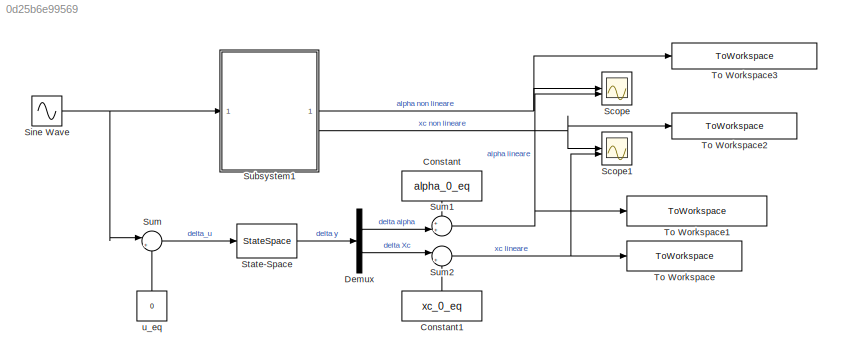
MODEL slx_0d25b6e99569
KIND model
CONFIG AbsTol = auto
CONFIG EnableMultiTasking = off
CONFIG FixedStep = auto
CONFIG MaxStep = auto
CONFIG MinStep = auto
CONFIG RelTol = 1e-3
CONFIG SampleTimeConstraint = Unconstrained
CONFIG SolverName = VariableStepAuto
CONFIG StartTime = 0.0
CONFIG StopTime = 15
BLOCK [Constant] Constant
  NameLocation = left
  Value = alpha_0_eq
BLOCK [Constant] Constant1
  NameLocation = right
  Value = xc_0_eq
BLOCK [Demux] Demux
  Outputs = 2
BLOCK [Scope] Scope
  Floating = off
  NumInputPorts = 2
  ScopeSpecificationString = Simulink.scopes.TimeScopeBlockCfg('CurrentConfiguration', extmgr.ConfigurationSet(extmgr.Configuration('Core','General UI',true),extmgr.Configuration('Core','Source UI',true),extmgr.Configuration('Sources','WiredSimulink',true),extmgr.Configuration('Visuals','Time Domain',true,'SerializedDisplays',{struct('MinYLimReal','-0.69945','MaxYLimReal','3.8349','YLabelReal','','MinYLimMag','0.00000','MaxYL...<+1639ch>
BLOCK [Scope] Scope1
  Floating = off
  NumInputPorts = 2
  ScopeSpecificationString = Simulink.scopes.TimeScopeBlockCfg('CurrentConfiguration', extmgr.ConfigurationSet(extmgr.Configuration('Core','General UI',true),extmgr.Configuration('Core','Source UI',true),extmgr.Configuration('Sources','WiredSimulink',true,'DataLoggingVariableName','ScopeData1'),extmgr.Configuration('Visuals','Time Domain',true,'SerializedDisplays',{struct('MinYLimReal','-0.45747','MaxYLimReal','4.11724','YLab...<+1659ch>
BLOCK [Sin] Sine Wave
  Amplitude = 1e4
  Frequency = 2
  SampleTime = 0
BLOCK [StateSpace] State-Space
  A = A
  B = B
  C = C
  D = D
  InitialCondition = 0
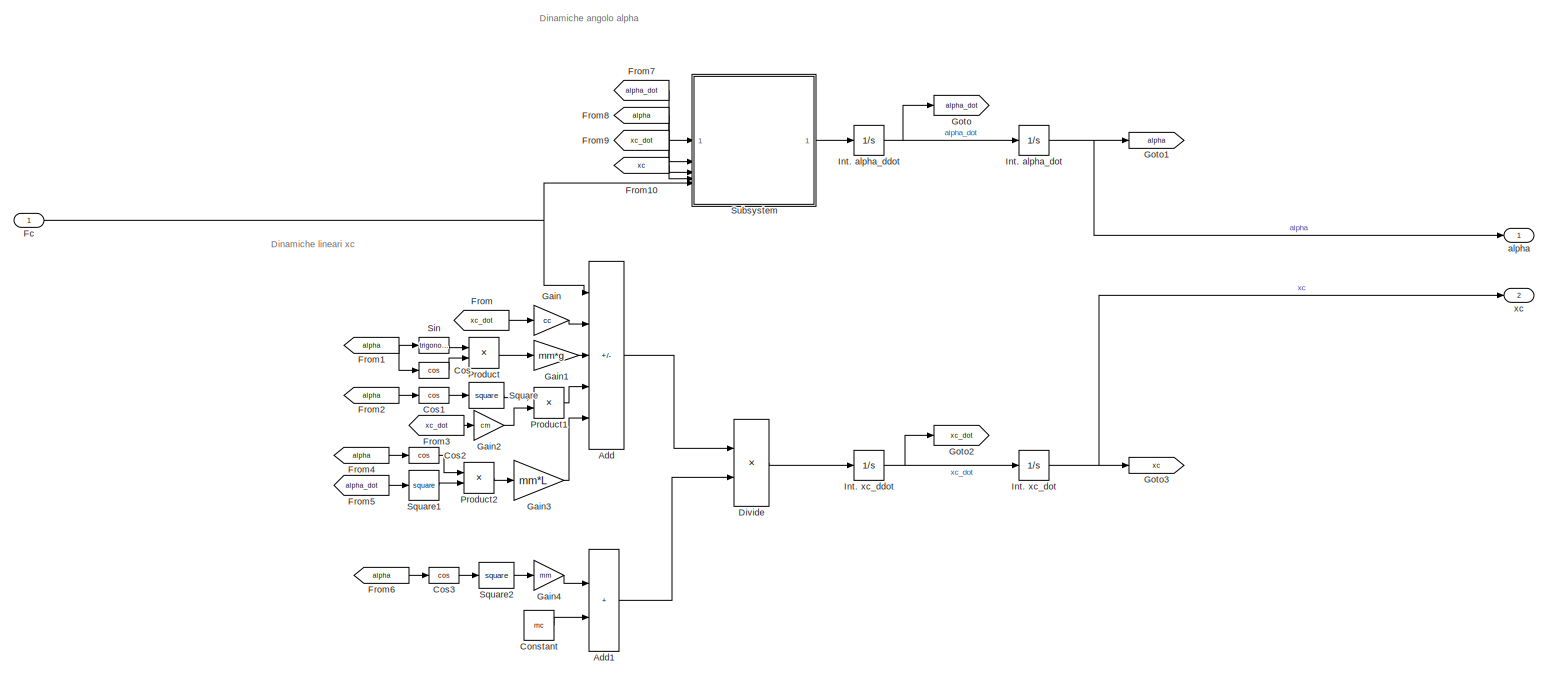
[diagram: Subsystem1 - part 1/1, most of the canvas]
BLOCK [SubSystem] Subsystem1
BLOCK [Sum] Subsystem1/Add
  IconShape = rectangular
  Inputs = +-+-+
BLOCK [Sum] Subsystem1/Add1
  IconShape = rectangular
BLOCK [Constant] Subsystem1/Constant
  Value = mc
BLOCK [Trigonometry] Subsystem1/Cos
  Operator = cos
BLOCK [Trigonometry] Subsystem1/Cos1
  Operator = cos
BLOCK [Trigonometry] Subsystem1/Cos2
  Operator = cos
BLOCK [Trigonometry] Subsystem1/Cos3
  Operator = cos
BLOCK [Product] Subsystem1/Divide
  Inputs = */
BLOCK [Inport] Subsystem1/Fc
BLOCK [From] Subsystem1/From
  GotoTag = xc_dot
BLOCK [From] Subsystem1/From1
  GotoTag = alpha
BLOCK [From] Subsystem1/From10
  GotoTag = xc
BLOCK [From] Subsystem1/From2
  GotoTag = alpha
BLOCK [From] Subsystem1/From3
  GotoTag = xc_dot
BLOCK [From] Subsystem1/From4
  GotoTag = alpha
BLOCK [From] Subsystem1/From5
  GotoTag = alpha_dot
BLOCK [From] Subsystem1/From6
  GotoTag = alpha
BLOCK [From] Subsystem1/From7
  GotoTag = alpha_dot
BLOCK [From] Subsystem1/From8
  GotoTag = alpha
BLOCK [From] Subsystem1/From9
  GotoTag = xc_dot
BLOCK [Gain] Subsystem1/Gain
  Gain = cc
BLOCK [Gain] Subsystem1/Gain1
  Gain = mm*g
BLOCK [Gain] Subsystem1/Gain2
  Gain = cm
BLOCK [Gain] Subsystem1/Gain3
  Gain = mm*L
BLOCK [Gain] Subsystem1/Gain4
  Gain = mm
BLOCK [Goto] Subsystem1/Goto
  GotoTag = alpha_dot
BLOCK [Goto] Subsystem1/Goto1
  GotoTag = alpha
BLOCK [Goto] Subsystem1/Goto2
  GotoTag = xc_dot
BLOCK [Goto] Subsystem1/Goto3
  GotoTag = xc
BLOCK [Integrator] Subsystem1/Int. alpha_ddot
  InitialCondition = alpha_dot_0_eq
BLOCK [Integrator] Subsystem1/Int. alpha_dot
  InitialCondition = alpha_0_eq
BLOCK [Integrator] Subsystem1/Int. xc_ddot
  InitialCondition = xc_dot_0_eq
BLOCK [Integrator] Subsystem1/Int. xc_dot
  InitialCondition = xc_0_eq
BLOCK [Product] Subsystem1/Product
BLOCK [Product] Subsystem1/Product1
BLOCK [Product] Subsystem1/Product2
BLOCK [Trigonometry] Subsystem1/Sin
BLOCK [Math] Subsystem1/Square
  Operator = square
BLOCK [Math] Subsystem1/Square1
  Operator = square
BLOCK [Math] Subsystem1/Square2
  Operator = square
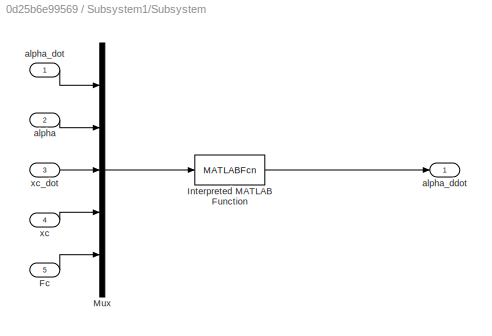
BLOCK [SubSystem] Subsystem1/Subsystem
BLOCK [Inport] Subsystem1/Subsystem/Fc
  Port = 5
BLOCK [MATLABFcn] Subsystem1/Subsystem/Interpreted MATLAB Function
  MATLABFcn = dinamica_alpha(u, mm, mc, cm, cc, L, g)
BLOCK [Mux] Subsystem1/Subsystem/Mux
  DisplayOption = bar
  Inputs = 5
BLOCK [Inport] Subsystem1/Subsystem/alpha
  Port = 2
BLOCK [Outport] Subsystem1/Subsystem/alpha_ddot
BLOCK [Inport] Subsystem1/Subsystem/alpha_dot
BLOCK [Inport] Subsystem1/Subsystem/xc
  Port = 4
BLOCK [Inport] Subsystem1/Subsystem/xc_dot
  Port = 3
BLOCK [Outport] Subsystem1/alpha
BLOCK [Outport] Subsystem1/xc
  Port = 2
BLOCK [Sum] Sum
  Inputs = |+-
BLOCK [Sum] Sum1
  Inputs = ++|
BLOCK [Sum] Sum2
  Inputs = |++
BLOCK [ToWorkspace] To Workspace
  FixptAsFi = on
  MaxDataPoints = inf
  SampleTime = -1
  VariableName = xc_lineare_simulink
BLOCK [ToWorkspace] To Workspace1
  FixptAsFi = on
  MaxDataPoints = inf
  SampleTime = -1
  VariableName = alpha_lineare_simulink
BLOCK [ToWorkspace] To Workspace2
  FixptAsFi = on
  MaxDataPoints = inf
  SampleTime = -1
  VariableName = xc_non_lineare_simulink
BLOCK [ToWorkspace] To Workspace3
  FixptAsFi = on
  MaxDataPoints = inf
  SampleTime = -1
  VariableName = alpha_non_lineare_simulink
BLOCK [Constant] u_eq
  NameLocation = left
  Value = 0
ANNOTATION Subsystem1: Dinamiche angolo alpha
ANNOTATION Subsystem1: Dinamiche lineari xc
LINE Constant1:1 -> Sum2:2
LINE Constant:1 -> Sum1:1
LINE Demux:1 -> Sum1:2
LINE Demux:2 -> Sum2:1
NET Sine Wave:1 -> Subsystem1:1, Sum:1
LINE State-Space:1 -> Demux:1
LINE Subsystem1/Add1:1 -> Subsystem1/Divide:2
LINE Subsystem1/Add:1 -> Subsystem1/Divide:1
LINE Subsystem1/Constant:1 -> Subsystem1/Add1:2
LINE Subsystem1/Cos1:1 -> Subsystem1/Square:1
LINE Subsystem1/Cos2:1 -> Subsystem1/Product2:1
LINE Subsystem1/Cos3:1 -> Subsystem1/Square2:1
LINE Subsystem1/Cos:1 -> Subsystem1/Product:2
LINE Subsystem1/Divide:1 -> Subsystem1/Int. xc_ddot:1
NET Subsystem1/Fc:1 -> Subsystem1/Add:1, Subsystem1/Subsystem:5
LINE Subsystem1/From10:1 -> Subsystem1/Subsystem:4
NET Subsystem1/From1:1 -> Subsystem1/Cos:1, Subsystem1/Sin:1
LINE Subsystem1/From2:1 -> Subsystem1/Cos1:1
LINE Subsystem1/From3:1 -> Subsystem1/Gain2:1
LINE Subsystem1/From4:1 -> Subsystem1/Cos2:1
LINE Subsystem1/From5:1 -> Subsystem1/Square1:1
LINE Subsystem1/From6:1 -> Subsystem1/Cos3:1
LINE Subsystem1/From7:1 -> Subsystem1/Subsystem:1
LINE Subsystem1/From8:1 -> Subsystem1/Subsystem:2
LINE Subsystem1/From9:1 -> Subsystem1/Subsystem:3
LINE Subsystem1/From:1 -> Subsystem1/Gain:1
LINE Subsystem1/Gain1:1 -> Subsystem1/Add:3
LINE Subsystem1/Gain2:1 -> Subsystem1/Product1:2
LINE Subsystem1/Gain3:1 -> Subsystem1/Add:5
LINE Subsystem1/Gain4:1 -> Subsystem1/Add1:1
LINE Subsystem1/Gain:1 -> Subsystem1/Add:2
NET Subsystem1/Int. alpha_ddot:1 -> Subsystem1/Goto:1, Subsystem1/Int. alpha_dot:1
NET Subsystem1/Int. alpha_dot:1 -> Subsystem1/Goto1:1, Subsystem1/alpha:1
NET Subsystem1/Int. xc_ddot:1 -> Subsystem1/Goto2:1, Subsystem1/Int. xc_dot:1
NET Subsystem1/Int. xc_dot:1 -> Subsystem1/Goto3:1, Subsystem1/xc:1
LINE Subsystem1/Product1:1 -> Subsystem1/Add:4
LINE Subsystem1/Product2:1 -> Subsystem1/Gain3:1
LINE Subsystem1/Product:1 -> Subsystem1/Gain1:1
LINE Subsystem1/Sin:1 -> Subsystem1/Product:1
LINE Subsystem1/Square1:1 -> Subsystem1/Product2:2
LINE Subsystem1/Square2:1 -> Subsystem1/Gain4:1
LINE Subsystem1/Square:1 -> Subsystem1/Product1:1
LINE Subsystem1/Subsystem/Fc:1 -> Subsystem1/Subsystem/Mux:5
LINE Subsystem1/Subsystem/Interpreted MATLAB Function:1 -> Subsystem1/Subsystem/alpha_ddot:1
LINE Subsystem1/Subsystem/Mux:1 -> Subsystem1/Subsystem/Interpreted MATLAB Function:1
LINE Subsystem1/Subsystem/alpha:1 -> Subsystem1/Subsystem/Mux:2
LINE Subsystem1/Subsystem/alpha_dot:1 -> Subsystem1/Subsystem/Mux:1
LINE Subsystem1/Subsystem/xc:1 -> Subsystem1/Subsystem/Mux:4
LINE Subsystem1/Subsystem/xc_dot:1 -> Subsystem1/Subsystem/Mux:3
LINE Subsystem1/Subsystem:1 -> Subsystem1/Int. alpha_ddot:1
NET Subsystem1:1 -> Scope:1, To Workspace3:1
NET Subsystem1:2 -> Scope1:1, To Workspace2:1
NET Sum1:1 -> Scope:2, To Workspace1:1
NET Sum2:1 -> Scope1:2, To Workspace:1
LINE Sum:1 -> State-Space:1
LINE u_eq:1 -> Sum:2
note: NET lines group one-source signal fan-out (src -> all destinations, sorted); 1:1 wires keep LINE
